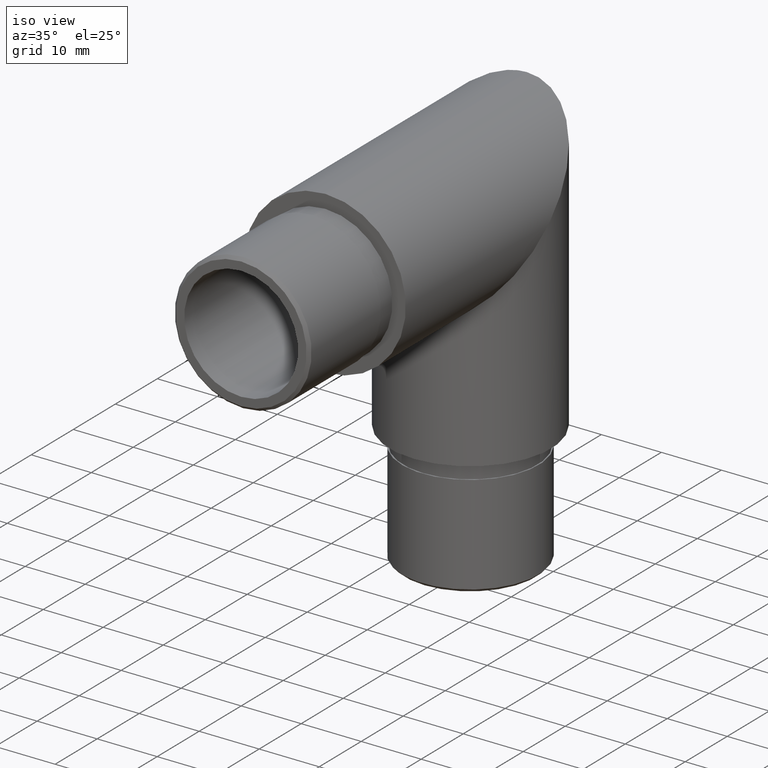
[diagram: clean part render]
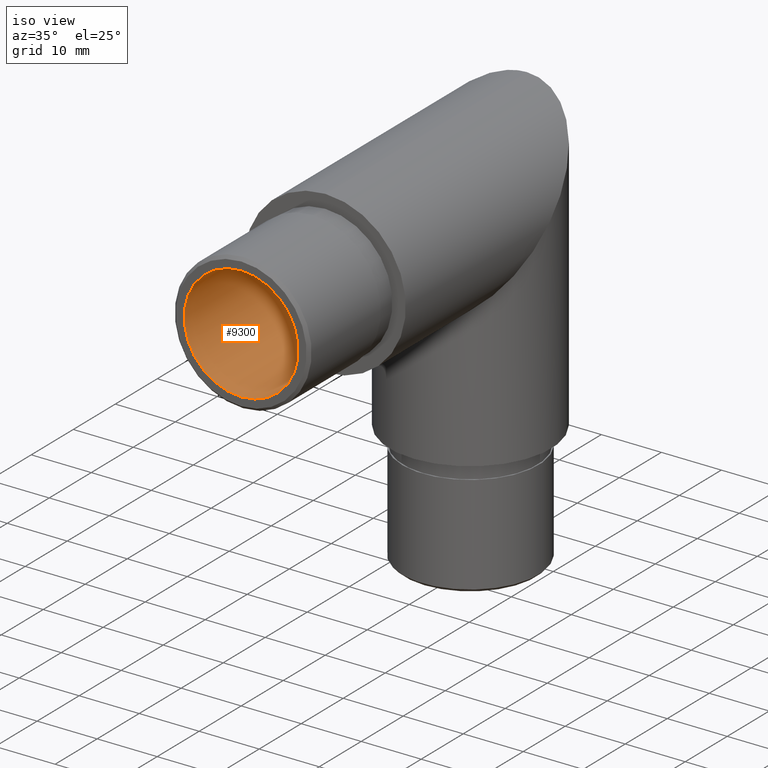
[diagram: same view with one face highlighted and labeled with its STEP entity id]
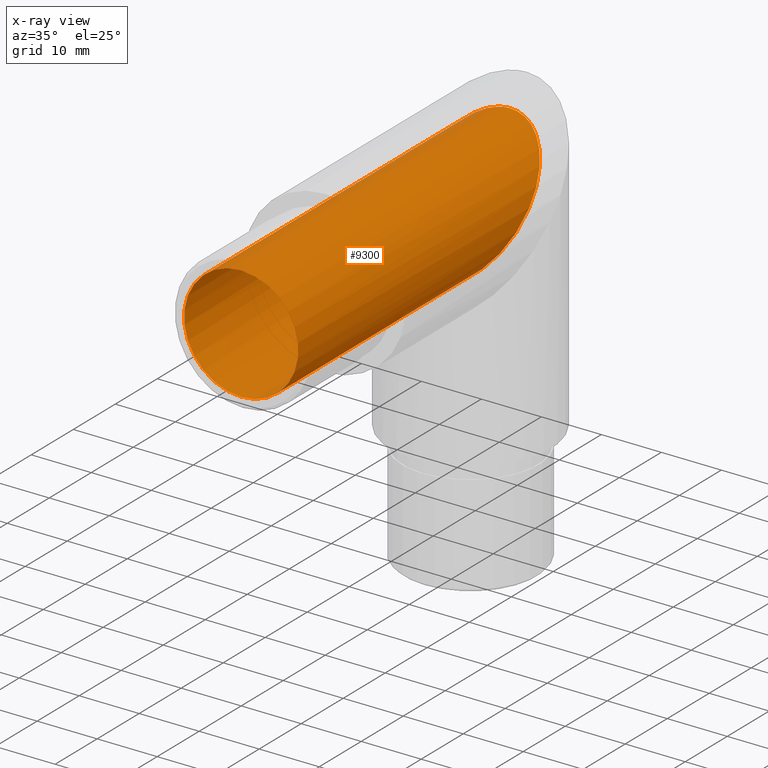
[diagram: x-ray of the same camera — body ghosted, the highlighted face saturated]
A machine part, iso view. The second image highlights one B-rep face of the part: STEP entity #9300.
The next image is the same camera in x-ray: the body ghosted, the highlighted face saturated — about 1% of this face is hidden behind the body in this view.
In plain terms, the highlighted cylindrical surface (bore or boss wall) has radius 9.5 mm, axis along (-0, -1, -0).
Its self-contained STEP definition (entity closure, byte-faithful):
#133 = DIRECTION ( 'NONE',  ( -0.0000000000000000000, -1.000000000000000000, -0.0000000000000000000 ) ) ;
#539 = FACE_OUTER_BOUND ( 'NONE', #6824, .T. ) ;
#1042 = CARTESIAN_POINT ( 'NONE',  ( 0.0000000000000000000, 72.59234482783624300, 0.0000000000000000000 ) ) ;
#2118 = CARTESIAN_POINT ( 'NONE',  ( 0.0000000000000000000, 25.04999999999996200, -9.500000000000000000 ) ) ;
#2160 = CARTESIAN_POINT ( 'NONE',  ( -18.99999999999999300, 44.05000000000003300, 9.499999999999996400 ) ) ;
#3050 = CARTESIAN_POINT ( 'NONE',  ( 18.99999999999999300, 44.05000000000003300, 9.500000000000001800 ) ) ;
#3142 = AXIS2_PLACEMENT_3D ( 'NONE', #1042, #133, #4732 ) ;
#3349 = CYLINDRICAL_SURFACE ( 'NONE', #3142, 9.500000000000000000 ) ;
#3504 = FACE_OUTER_BOUND ( 'NONE', #5442, .T. ) ;
#3887 =( BOUNDED_CURVE ( )  B_SPLINE_CURVE ( 3, ( #2118, #6026, #2160, #4128, #3050, #6830, #7734 ),
 .UNSPECIFIED., .T., .T. ) 
 B_SPLINE_CURVE_WITH_KNOTS ( ( 4, 3, 4 ),
 ( 0.0000000000000000000, 3.141592653589793100, 6.283185307179586200 ),
 .UNSPECIFIED. ) 
 CURVE ( )  GEOMETRIC_REPRESENTATION_ITEM ( )  RATIONAL_B_SPLINE_CURVE ( ( 1.000000000000000000, 0.3333333333333333700, 0.3333333333333333700, 1.000000000000000000, 0.3333333333333333700, 0.3333333333333333700, 1.000000000000000000 ) ) 
 REPRESENTATION_ITEM ( '' )  );
#4128 = CARTESIAN_POINT ( 'NONE',  ( -1.163414459189985500E-015, 44.05000000000003300, 9.500000000000000000 ) ) ;
#4732 = DIRECTION ( 'NONE',  ( 0.0000000000000000000, 0.0000000000000000000, -1.000000000000000000 ) ) ;
#5442 = EDGE_LOOP ( 'NONE', ( #9519 ) ) ;
#5507 = VERTEX_POINT ( 'NONE', #9479 ) ;
#5797 = DIRECTION ( 'NONE',  ( 0.0000000000000000000, -1.000000000000000000, 0.0000000000000000000 ) ) ;
#5811 = AXIS2_PLACEMENT_3D ( 'NONE', #6777, #5797, #9457 ) ;
#6026 = CARTESIAN_POINT ( 'NONE',  ( -18.99999999999999300, 25.04999999999996500, -9.500000000000000000 ) ) ;
#6777 = CARTESIAN_POINT ( 'NONE',  ( 0.0000000000000000000, -20.00000000000000000, 0.0000000000000000000 ) ) ;
#6824 = EDGE_LOOP ( 'NONE', ( #12103 ) ) ;
#6830 = CARTESIAN_POINT ( 'NONE',  ( 18.99999999999999300, 25.04999999999996500, -9.500000000000000000 ) ) ;
#7458 = EDGE_CURVE ( 'NONE', #12126, #12126, #3887, .T. ) ;
#7734 = CARTESIAN_POINT ( 'NONE',  ( 0.0000000000000000000, 25.04999999999996200, -9.500000000000000000 ) ) ;
#8447 = CIRCLE ( 'NONE', #5811, 9.500000000000001800 ) ;
#9300 = ADVANCED_FACE ( 'NONE', ( #539, #3504 ), #3349, .F. ) ;
#9457 = DIRECTION ( 'NONE',  ( 0.0000000000000000000, 0.0000000000000000000, -1.000000000000000000 ) ) ;
#9479 = CARTESIAN_POINT ( 'NONE',  ( 0.0000000000000000000, -20.00000000000000000, -9.500000000000001800 ) ) ;
#9519 = ORIENTED_EDGE ( 'NONE', *, *, #9781, .T. ) ;
#9781 = EDGE_CURVE ( 'NONE', #5507, #5507, #8447, .T. ) ;
#10622 = CARTESIAN_POINT ( 'NONE',  ( 0.0000000000000000000, 25.04999999999996200, -9.500000000000000000 ) ) ;
#12103 = ORIENTED_EDGE ( 'NONE', *, *, #7458, .T. ) ;
#12126 = VERTEX_POINT ( 'NONE', #10622 ) ;